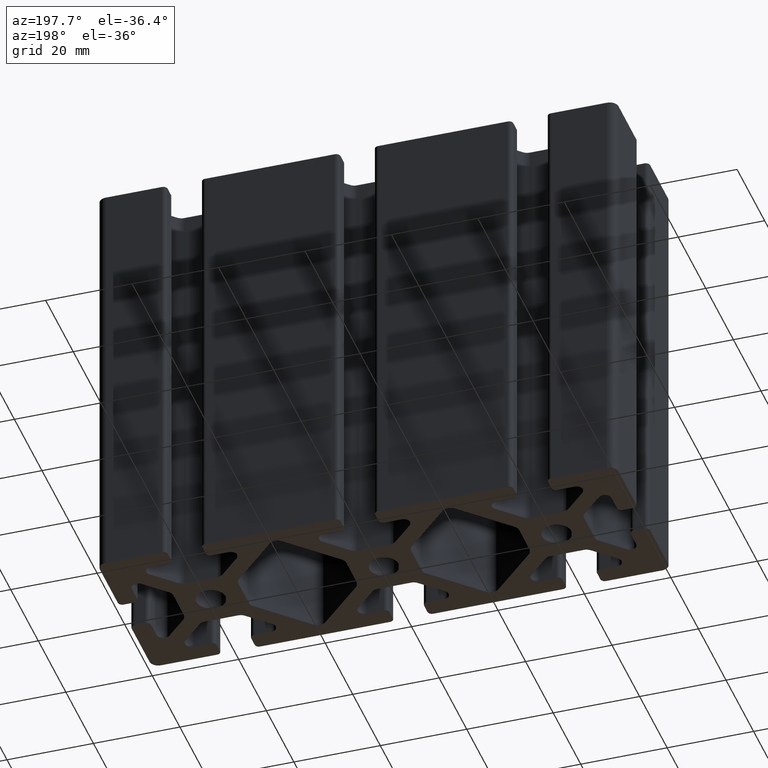
[diagram: clean part render]
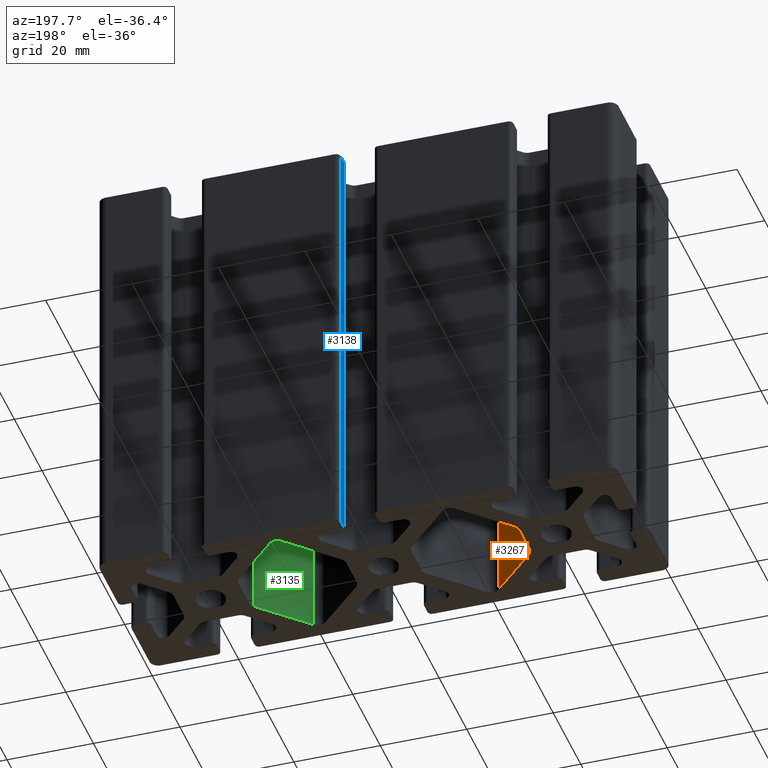
[diagram: same view with three faces highlighted in distinct colors, each labeled with its STEP entity id]
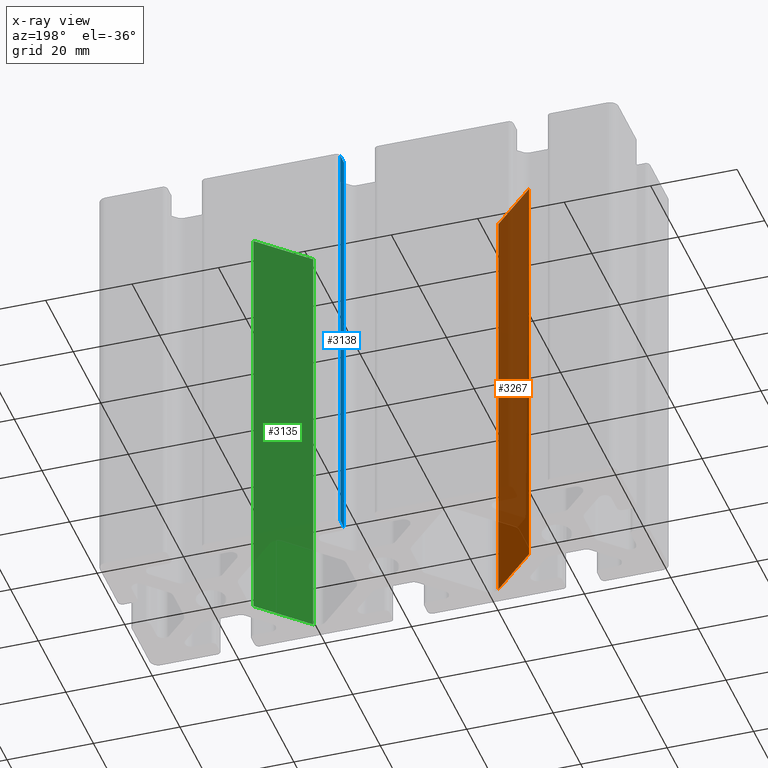
[diagram: x-ray of the same camera — body ghosted, the three highlighted faces saturated]
A machine part, auxiliary view with three faces highlighted in distinct colors.
The next image is the same camera in x-ray (body ghosted, the three faces saturated) — at least one of them is partly hidden behind the body in this view.
Their STEP definitions:

[orange] entity #3267 — the highlighted planar face has unit normal (-0.7071, -0.7071, 0).
#93=PLANE('',#3586);
#251=FACE_OUTER_BOUND('',#419,.T.);
#419=EDGE_LOOP('',(#2629,#2630,#2631,#2632));
#729=LINE('',#5477,#1049);
#730=LINE('',#5481,#1050);
#731=LINE('',#5483,#1051);
#732=LINE('',#5484,#1052);
#1049=VECTOR('',#4486,100.);
#1050=VECTOR('',#4491,14.8492424049175);
#1051=VECTOR('',#4492,100.);
#1052=VECTOR('',#4493,14.8492424049175);
#1557=VERTEX_POINT('',#5474);
#1558=VERTEX_POINT('',#5476);
#1559=VERTEX_POINT('',#5480);
#1560=VERTEX_POINT('',#5482);
#2012=EDGE_CURVE('',#1558,#1557,#729,.T.);
#2014=EDGE_CURVE('',#1559,#1557,#730,.T.);
#2015=EDGE_CURVE('',#1560,#1559,#731,.T.);
#2016=EDGE_CURVE('',#1558,#1560,#732,.T.);
#2629=ORIENTED_EDGE('',*,*,#2014,.F.);
#2630=ORIENTED_EDGE('',*,*,#2015,.F.);
#2631=ORIENTED_EDGE('',*,*,#2016,.F.);
#2632=ORIENTED_EDGE('',*,*,#2012,.T.);
#3267=ADVANCED_FACE('',(#251),#93,.F.);
#3586=AXIS2_PLACEMENT_3D('',#5479,#4489,#4490);
#4486=DIRECTION('',(0.,0.,1.));
#4489=DIRECTION('center_axis',(-0.707106781186548,-0.707106781186547,0.));
#4490=DIRECTION('ref_axis',(0.,0.,1.));
#4491=DIRECTION('',(-0.707106781186547,0.707106781186548,0.));
#4492=DIRECTION('',(0.,0.,1.));
#4493=DIRECTION('',(0.707106781186547,-0.707106781186548,0.));
#5474=CARTESIAN_POINT('',(-31.9142135623731,-5.25735931288071,100.));
#5476=CARTESIAN_POINT('',(-31.9142135623731,-5.25735931288071,0.));
#5477=CARTESIAN_POINT('',(-31.9142135623731,-5.25735931288071,0.));
#5479=CARTESIAN_POINT('Origin',(-21.4142135623731,-15.7573593128807,0.));
#5480=CARTESIAN_POINT('',(-21.4142135623731,-15.7573593128807,100.));
#5481=CARTESIAN_POINT('',(-20.,-17.1715728752538,100.));
#5482=CARTESIAN_POINT('',(-21.4142135623731,-15.7573593128807,0.));
#5483=CARTESIAN_POINT('',(-21.4142135623731,-15.7573593128807,0.));
#5484=CARTESIAN_POINT('',(-20.,-17.1715728752538,0.));

[blue] entity #3138 — the highlighted planar face has unit normal (1, 0, 0).
#34=PLANE('',#3317);
#122=FACE_OUTER_BOUND('',#287,.T.);
#287=EDGE_LOOP('',(#2119,#2120,#2121,#2122));
#477=LINE('',#4684,#797);
#478=LINE('',#4686,#798);
#479=LINE('',#4688,#799);
#480=LINE('',#4689,#800);
#797=VECTOR('',#3700,2.5);
#798=VECTOR('',#3701,100.);
#799=VECTOR('',#3702,2.5);
#800=VECTOR('',#3703,100.);
#1283=VERTEX_POINT('',#4682);
#1284=VERTEX_POINT('',#4683);
#1285=VERTEX_POINT('',#4685);
#1286=VERTEX_POINT('',#4687);
#1621=EDGE_CURVE('',#1283,#1284,#477,.T.);
#1622=EDGE_CURVE('',#1285,#1283,#478,.T.);
#1623=EDGE_CURVE('',#1286,#1285,#479,.T.);
#1624=EDGE_CURVE('',#1286,#1284,#480,.T.);
#2119=ORIENTED_EDGE('',*,*,#1621,.F.);
#2120=ORIENTED_EDGE('',*,*,#1622,.F.);
#2121=ORIENTED_EDGE('',*,*,#1623,.F.);
#2122=ORIENTED_EDGE('',*,*,#1624,.T.);
#3138=ADVANCED_FACE('',(#122),#34,.F.);
#3317=AXIS2_PLACEMENT_3D('',#4681,#3698,#3699);
#3698=DIRECTION('center_axis',(1.,0.,0.));
#3699=DIRECTION('ref_axis',(0.,0.,-1.));
#3700=DIRECTION('',(0.,-1.,0.));
#3701=DIRECTION('',(0.,0.,1.));
#3702=DIRECTION('',(0.,1.,0.));
#3703=DIRECTION('',(0.,0.,1.));
#4681=CARTESIAN_POINT('Origin',(4.,19.,0.));
#4682=CARTESIAN_POINT('',(4.,19.,100.));
#4683=CARTESIAN_POINT('',(4.,16.5,100.));
#4684=CARTESIAN_POINT('',(4.,9.5,100.));
#4685=CARTESIAN_POINT('',(4.,19.,0.));
#4686=CARTESIAN_POINT('',(4.,19.,0.));
#4687=CARTESIAN_POINT('',(4.,16.5,0.));
#4688=CARTESIAN_POINT('',(4.,9.5,0.));
#4689=CARTESIAN_POINT('',(4.,16.5,0.));

[green] entity #3135 — the highlighted planar face has unit normal (0.7071, -0.7071, 0).
#32=PLANE('',#3312);
#119=FACE_OUTER_BOUND('',#284,.T.);
#284=EDGE_LOOP('',(#2107,#2108,#2109,#2110));
#470=LINE('',#4665,#790);
#471=LINE('',#4668,#791);
#472=LINE('',#4670,#792);
#473=LINE('',#4671,#793);
#790=VECTOR('',#3681,100.);
#791=VECTOR('',#3684,14.8492424049175);
#792=VECTOR('',#3685,14.8492424049175);
#793=VECTOR('',#3686,100.);
#1277=VERTEX_POINT('',#4661);
#1278=VERTEX_POINT('',#4663);
#1279=VERTEX_POINT('',#4667);
#1280=VERTEX_POINT('',#4669);
#1612=EDGE_CURVE('',#1278,#1277,#470,.T.);
#1613=EDGE_CURVE('',#1277,#1279,#471,.T.);
#1614=EDGE_CURVE('',#1280,#1278,#472,.T.);
#1615=EDGE_CURVE('',#1280,#1279,#473,.T.);
#2107=ORIENTED_EDGE('',*,*,#1613,.F.);
#2108=ORIENTED_EDGE('',*,*,#1612,.F.);
#2109=ORIENTED_EDGE('',*,*,#1614,.F.);
#2110=ORIENTED_EDGE('',*,*,#1615,.T.);
#3135=ADVANCED_FACE('',(#119),#32,.F.);
#3312=AXIS2_PLACEMENT_3D('',#4666,#3682,#3683);
#3681=DIRECTION('',(0.,0.,1.));
#3682=DIRECTION('center_axis',(0.707106781186548,-0.707106781186547,0.));
#3683=DIRECTION('ref_axis',(0.,0.,-1.));
#3684=DIRECTION('',(-0.707106781186547,-0.707106781186548,0.));
#3685=DIRECTION('',(0.707106781186547,0.707106781186548,0.));
#3686=DIRECTION('',(0.,0.,1.));
#4661=CARTESIAN_POINT('',(31.9142135623731,-5.2573593128807,100.));
#4663=CARTESIAN_POINT('',(31.9142135623731,-5.2573593128807,0.));
#4665=CARTESIAN_POINT('',(31.9142135623731,-5.2573593128807,0.));
#4666=CARTESIAN_POINT('Origin',(31.9142135623731,-5.2573593128807,0.));
#4667=CARTESIAN_POINT('',(21.4142135623731,-15.7573593128807,100.));
#4668=CARTESIAN_POINT('',(25.25,-11.9215728752538,100.));
#4669=CARTESIAN_POINT('',(21.4142135623731,-15.7573593128807,0.));
#4670=CARTESIAN_POINT('',(25.25,-11.9215728752538,0.));
#4671=CARTESIAN_POINT('',(21.4142135623731,-15.7573593128807,0.));